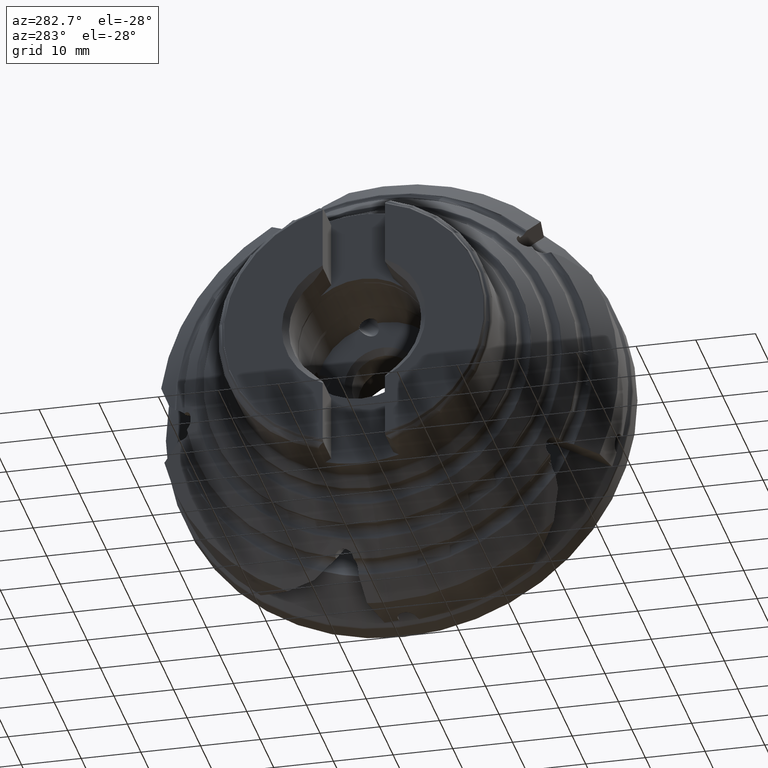
[diagram: clean part render]
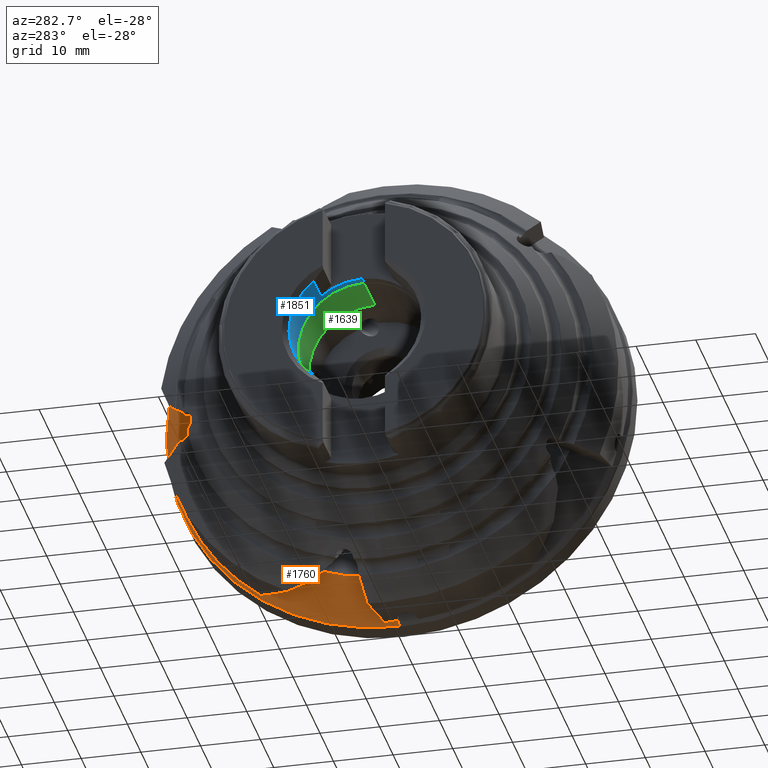
[diagram: same view with three faces highlighted in distinct colors, each labeled with its STEP entity id]
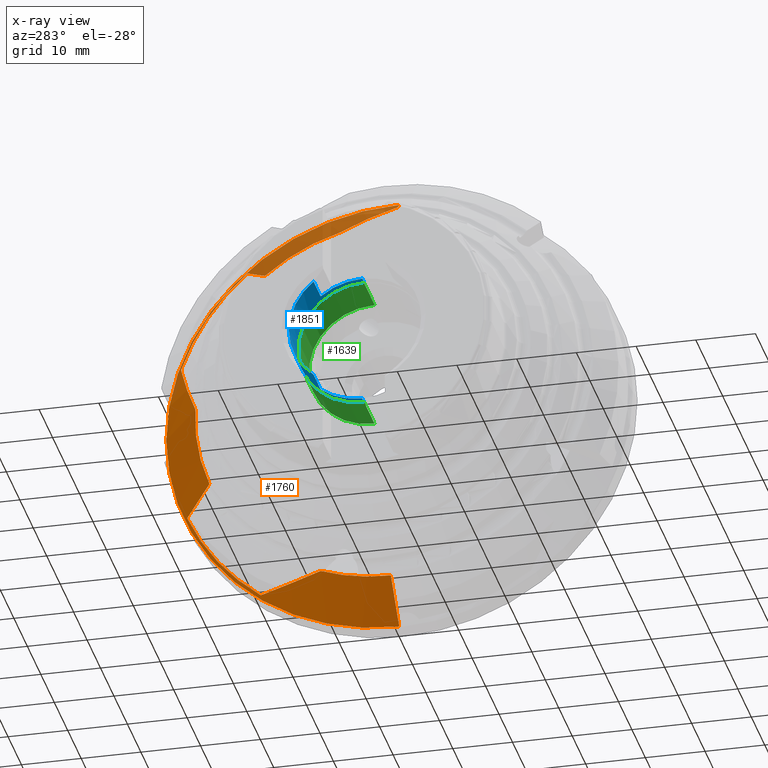
[diagram: x-ray of the same camera — body ghosted, the three highlighted faces saturated]
A machine part, auxiliary view with three faces highlighted in distinct colors.
The next image is the same camera in x-ray (body ghosted, the three faces saturated) — at least one of them is partly hidden behind the body in this view.
Their STEP definitions:

[orange] entity #1760 — the highlighted conical surface has half-angle 45 deg.
#352 = ORIENTED_EDGE ( 'NONE', *, *, #8707, .F. ) ;
#354 = ORIENTED_EDGE ( 'NONE', *, *, #8752, .T. ) ;
#358 = ORIENTED_EDGE ( 'NONE', *, *, #8715, .T. ) ;
#360 = ORIENTED_EDGE ( 'NONE', *, *, #8522, .F. ) ;
#397 = ORIENTED_EDGE ( 'NONE', *, *, #8539, .F. ) ;
#398 = ORIENTED_EDGE ( 'NONE', *, *, #8744, .F. ) ;
#400 = ORIENTED_EDGE ( 'NONE', *, *, #8523, .F. ) ;
#531 = ORIENTED_EDGE ( 'NONE', *, *, #8491, .F. ) ;
#537 = ORIENTED_EDGE ( 'NONE', *, *, #8507, .T. ) ;
#552 = ORIENTED_EDGE ( 'NONE', *, *, #8775, .T. ) ;
#557 = ORIENTED_EDGE ( 'NONE', *, *, #8500, .F. ) ;
#793 = FACE_OUTER_BOUND ( 'NONE', #9866, .T. ) ;
#846 = CONICAL_SURFACE ( 'NONE', #10441, 39.15000000000000600, 0.7853981633974506100 ) ;
#940 = B_SPLINE_CURVE_WITH_KNOTS ( 'NONE', 3,
 ( #4435, #4460, #4464, #4465, #4466, #4467 ),
 .UNSPECIFIED., .F., .F.,
 ( 4, 2, 4 ),
 ( 4.998149177076935600E-007, 0.006338097076132026900, 0.01267569433734634500 ),
 .UNSPECIFIED. ) ;
#965 = B_SPLINE_CURVE_WITH_KNOTS ( 'NONE', 3,
 ( #6657, #6658, #4433, #4434 ),
 .UNSPECIFIED., .F., .F.,
 ( 4, 4 ),
 ( 2.839225696594633400E-007, 0.008107362688691475300 ),
 .UNSPECIFIED. ) ;
#966 = B_SPLINE_CURVE_WITH_KNOTS ( 'NONE', 3,
 ( #6511, #6496, #6513, #6514 ),
 .UNSPECIFIED., .F., .F.,
 ( 4, 4 ),
 ( 2.839225716183299500E-007, 0.008107362690191447300 ),
 .UNSPECIFIED. ) ;
#971 = B_SPLINE_CURVE_WITH_KNOTS ( 'NONE', 3,
 ( #6539, #6549, #6555, #6556, #6557, #6558 ),
 .UNSPECIFIED., .F., .F.,
 ( 4, 2, 4 ),
 ( 4.998149175270989400E-007, 0.006338097076131845600, 0.01267569433734616400 ),
 .UNSPECIFIED. ) ;
#1018 = B_SPLINE_CURVE_WITH_KNOTS ( 'NONE', 3,
 ( #7475, #7493, #7496, #7497, #7498, #7499 ),
 .UNSPECIFIED., .F., .F.,
 ( 4, 2, 4 ),
 ( 5.001190386679058200E-007, 0.005956320919708663600, 0.01191214172037865900 ),
 .UNSPECIFIED. ) ;
#1201 = ORIENTED_EDGE ( 'NONE', *, *, #8531, .T. ) ;
#1209 = ORIENTED_EDGE ( 'NONE', *, *, #8729, .F. ) ;
#1760 = ADVANCED_FACE ( 'NONE', ( #793 ), #846, .T. ) ;
#3434 = VERTEX_POINT ( 'NONE', #8084 ) ;
#3435 = VERTEX_POINT ( 'NONE', #8096 ) ;
#3481 = VERTEX_POINT ( 'NONE', #8120 ) ;
#3515 = VERTEX_POINT ( 'NONE', #8134 ) ;
#3550 = VERTEX_POINT ( 'NONE', #8148 ) ;
#3576 = VERTEX_POINT ( 'NONE', #8155 ) ;
#3590 = VERTEX_POINT ( 'NONE', #8158 ) ;
#3607 = VERTEX_POINT ( 'NONE', #8166 ) ;
#3630 = VERTEX_POINT ( 'NONE', #8170 ) ;
#3632 = VERTEX_POINT ( 'NONE', #8168 ) ;
#3699 = VERTEX_POINT ( 'NONE', #8212 ) ;
#3720 = VERTEX_POINT ( 'NONE', #8223 ) ;
#3721 = VERTEX_POINT ( 'NONE', #8221 ) ;
#4433 = CARTESIAN_POINT ( 'NONE',  ( -12.25556226208592600, 23.91625361857510900, 27.69848549084971300 ) ) ;
#4434 = CARTESIAN_POINT ( 'NONE',  ( -10.35000000000003000, 25.32094985395250900, 29.00171544053252100 ) ) ;
#4435 = CARTESIAN_POINT ( 'NONE',  ( -16.06396103067893900, 11.76240087903417700, -30.60343570350779200 ) ) ;
#4460 = CARTESIAN_POINT ( 'NONE',  ( -15.21863026519159100, 13.70087912173086800, -30.76400229089890100 ) ) ;
#4464 = CARTESIAN_POINT ( 'NONE',  ( -14.31169853684057700, 15.60881003817991100, -30.85279042755896800 ) ) ;
#4465 = CARTESIAN_POINT ( 'NONE',  ( -12.39988203309779100, 19.37609789518855800, -30.91623020634851200 ) ) ;
#4466 = CARTESIAN_POINT ( 'NONE',  ( -11.39489777325102300, 21.23540550236176500, -30.89076592756181200 ) ) ;
#4467 = CARTESIAN_POINT ( 'NONE',  ( -10.35000000000003700, 23.07492038132151200, -30.81879376931668100 ) ) ;
#4512 = CARTESIAN_POINT ( 'NONE',  ( -10.35000000000003200, 0.0000000000000000000, 0.0000000000000000000 ) ) ;
#4513 = DIRECTION ( 'NONE',  ( -1.000000000000000000, -0.0000000000000000000, -0.0000000000000000000 ) ) ;
#4514 = DIRECTION ( 'NONE',  ( 0.0000000000000000000, 1.776356839400250500E-015, -1.000000000000000000 ) ) ;
#4871 = CARTESIAN_POINT ( 'NONE',  ( -10.35000000000003200, 0.0000000000000000000, 0.0000000000000000000 ) ) ;
#4872 = DIRECTION ( 'NONE',  ( -1.000000000000000000, -0.0000000000000000000, -0.0000000000000000000 ) ) ;
#4873 = DIRECTION ( 'NONE',  ( 0.0000000000000000000, -3.552713678800500900E-015, -1.000000000000000000 ) ) ;
#4896 = CARTESIAN_POINT ( 'NONE',  ( -9.846446609406756400, 0.0000000000000000000, 0.0000000000000000000 ) ) ;
#4897 = DIRECTION ( 'NONE',  ( -1.000000000000000000, -0.0000000000000000000, -0.0000000000000000000 ) ) ;
#4898 = DIRECTION ( 'NONE',  ( 0.0000000000000000000, 0.0000000000000000000, 1.000000000000000000 ) ) ;
#4926 = CARTESIAN_POINT ( 'NONE',  ( -16.06396103067893900, 0.0000000000000000000, 0.0000000000000000000 ) ) ;
#4927 = DIRECTION ( 'NONE',  ( -1.000000000000000000, -0.0000000000000000000, -0.0000000000000000000 ) ) ;
#4928 = DIRECTION ( 'NONE',  ( 0.0000000000000000000, 0.0000000000000000000, 1.000000000000000000 ) ) ;
#6435 = CARTESIAN_POINT ( 'NONE',  ( -9.700000000000029500, 0.0000000000000000000, -39.15000000000000600 ) ) ;
#6465 = DIRECTION ( 'NONE',  ( 0.7071067811865459100, 0.0000000000000000000, -0.7071067811865491300 ) ) ;
#6496 = CARTESIAN_POINT ( 'NONE',  ( -14.16037219592313100, 32.05903498613271600, -13.25307509183465300 ) ) ;
#6511 = CARTESIAN_POINT ( 'NONE',  ( -16.06396103067893900, 30.38342397019751200, -12.31957382156812900 ) ) ;
#6513 = CARTESIAN_POINT ( 'NONE',  ( -12.25556226208592700, 33.73335392750039600, -14.18640611419302500 ) ) ;
#6514 = CARTESIAN_POINT ( 'NONE',  ( -10.35000000000003000, 35.40687427204335300, -15.11963142023357800 ) ) ;
#6539 = CARTESIAN_POINT ( 'NONE',  ( -16.06396103067893900, 32.74037871311323800, 1.729726284635992700 ) ) ;
#6549 = CARTESIAN_POINT ( 'NONE',  ( -15.21863026519159200, 33.49210933257020900, 3.523710844816406100 ) ) ;
#6555 = CARTESIAN_POINT ( 'NONE',  ( -14.31169853684057700, 34.16613494578660900, 5.310823932419397800 ) ) ;
#6556 = CARTESIAN_POINT ( 'NONE',  ( -12.39988203309779800, 35.39062573131482000, 8.874123627821706600 ) ) ;
#6557 = CARTESIAN_POINT ( 'NONE',  ( -11.39489777325102400, 35.94096541142914700, 10.65029913831552300 ) ) ;
#6558 = CARTESIAN_POINT ( 'NONE',  ( -10.35000000000003700, 36.44095718034243700, 12.42202237079166100 ) ) ;
#6641 = AXIS2_PLACEMENT_3D ( 'NONE', #6659, #6660, #6662 ) ;
#6652 = AXIS2_PLACEMENT_3D ( 'NONE', #4512, #4513, #4514 ) ;
#6657 = CARTESIAN_POINT ( 'NONE',  ( -16.06396103067893900, 21.10560531507165600, 25.08939567989349200 ) ) ;
#6658 = CARTESIAN_POINT ( 'NONE',  ( -14.16037219592313100, 22.51121006101428500, 26.39452869859165700 ) ) ;
#6659 = CARTESIAN_POINT ( 'NONE',  ( -16.06396103067893900, 0.0000000000000000000, 0.0000000000000000000 ) ) ;
#6660 = DIRECTION ( 'NONE',  ( -1.000000000000000000, -0.0000000000000000000, -0.0000000000000000000 ) ) ;
#6662 = DIRECTION ( 'NONE',  ( 0.0000000000000000000, 0.0000000000000000000, 1.000000000000000000 ) ) ;
#6678 = AXIS2_PLACEMENT_3D ( 'NONE', #4871, #4872, #4873 ) ;
#6681 = AXIS2_PLACEMENT_3D ( 'NONE', #4896, #4897, #4898 ) ;
#6688 = AXIS2_PLACEMENT_3D ( 'NONE', #4926, #4927, #4928 ) ;
#6692 = AXIS2_PLACEMENT_3D ( 'NONE', #7429, #7430, #7431 ) ;
#6766 = CARTESIAN_POINT ( 'NONE',  ( -9.700000000000029500, 0.0000000000000000000, 0.0000000000000000000 ) ) ;
#6767 = DIRECTION ( 'NONE',  ( 1.000000000000000000, 0.0000000000000000000, 0.0000000000000000000 ) ) ;
#6777 = DIRECTION ( 'NONE',  ( 0.0000000000000000000, 0.0000000000000000000, -1.000000000000000000 ) ) ;
#7429 = CARTESIAN_POINT ( 'NONE',  ( -16.06396103067893900, 0.0000000000000000000, 0.0000000000000000000 ) ) ;
#7430 = DIRECTION ( 'NONE',  ( -1.000000000000000000, -0.0000000000000000000, -0.0000000000000000000 ) ) ;
#7431 = DIRECTION ( 'NONE',  ( 0.0000000000000000000, 0.0000000000000000000, 1.000000000000000000 ) ) ;
#7439 = CARTESIAN_POINT ( 'NONE',  ( -9.700000000000029500, 4.794492218661888300E-015, 39.15000000000000600 ) ) ;
#7440 = DIRECTION ( 'NONE',  ( 0.7071067811865459100, 8.659560562354952600E-017, 0.7071067811865491300 ) ) ;
#7475 = CARTESIAN_POINT ( 'NONE',  ( -16.06396103067893900, 8.472265970213612700, 31.67246533864706500 ) ) ;
#7493 = CARTESIAN_POINT ( 'NONE',  ( -15.27003599352886500, 7.088011666614220600, 32.86458686861084300 ) ) ;
#7496 = CARTESIAN_POINT ( 'NONE',  ( -14.42148344595441100, 5.687893586301966800, 33.98997390808610700 ) ) ;
#7497 = CARTESIAN_POINT ( 'NONE',  ( -12.63620034026142100, 2.862050615859678800, 36.13302726975995700 ) ) ;
#7498 = CARTESIAN_POINT ( 'NONE',  ( -11.69939624412964800, 1.436304370361025000, 37.15060375587037800 ) ) ;
#7499 = CARTESIAN_POINT ( 'NONE',  ( -10.72623484882376000, 5.367514032291686300E-015, 38.12376515117627200 ) ) ;
#8084 = CARTESIAN_POINT ( 'NONE',  ( -10.72623484882376000, 5.367514032291686300E-015, 38.12376515117627200 ) ) ;
#8096 = CARTESIAN_POINT ( 'NONE',  ( -9.846446609406756400, 0.0000000000000000000, -39.00355339059327500 ) ) ;
#8120 = CARTESIAN_POINT ( 'NONE',  ( -16.06396103067893900, 0.0000000000000000000, -32.78603896932106200 ) ) ;
#8134 = CARTESIAN_POINT ( 'NONE',  ( -10.35000000000003000, 35.40687427204335300, -15.11963142023357800 ) ) ;
#8148 = CARTESIAN_POINT ( 'NONE',  ( -16.06396103067893900, 11.76240087903417700, -30.60343570350779200 ) ) ;
#8155 = CARTESIAN_POINT ( 'NONE',  ( -16.06396103067893900, 21.10560531507165600, 25.08939567989349200 ) ) ;
#8158 = CARTESIAN_POINT ( 'NONE',  ( -16.06396103067893900, 30.38342397019751200, -12.31957382156812900 ) ) ;
#8166 = CARTESIAN_POINT ( 'NONE',  ( -10.35000000000003700, 23.07492038132151200, -30.81879376931668100 ) ) ;
#8168 = CARTESIAN_POINT ( 'NONE',  ( -10.35000000000003700, 36.44095718034243700, 12.42202237079166100 ) ) ;
#8170 = CARTESIAN_POINT ( 'NONE',  ( -16.06396103067893900, 32.74037871311323800, 1.729726284635992700 ) ) ;
#8212 = CARTESIAN_POINT ( 'NONE',  ( -16.06396103067893900, 8.472265970213612700, 31.67246533864706500 ) ) ;
#8221 = CARTESIAN_POINT ( 'NONE',  ( -10.35000000000003000, 25.32094985395250900, 29.00171544053252100 ) ) ;
#8223 = CARTESIAN_POINT ( 'NONE',  ( -9.846446609406756400, 4.776557681516295700E-015, 39.00355339059327500 ) ) ;
#8491 = EDGE_CURVE ( 'NONE', #3481, #3435, #8965, .T. ) ;
#8500 = EDGE_CURVE ( 'NONE', #3590, #3515, #966, .T. ) ;
#8507 = EDGE_CURVE ( 'NONE', #3630, #3632, #971, .T. ) ;
#8522 = EDGE_CURVE ( 'NONE', #3550, #3481, #8988, .T. ) ;
#8523 = EDGE_CURVE ( 'NONE', #3576, #3721, #965, .T. ) ;
#8531 = EDGE_CURVE ( 'NONE', #3550, #3607, #940, .T. ) ;
#8539 = EDGE_CURVE ( 'NONE', #3721, #3632, #9004, .T. ) ;
#8707 = EDGE_CURVE ( 'NONE', #3515, #3607, #9075, .T. ) ;
#8715 = EDGE_CURVE ( 'NONE', #3720, #3435, #9059, .T. ) ;
#8729 = EDGE_CURVE ( 'NONE', #3630, #3590, #9088, .T. ) ;
#8744 = EDGE_CURVE ( 'NONE', #3699, #3576, #9098, .T. ) ;
#8752 = EDGE_CURVE ( 'NONE', #3434, #3720, #9113, .T. ) ;
#8775 = EDGE_CURVE ( 'NONE', #3699, #3434, #1018, .T. ) ;
#8965 = LINE ( 'NONE', #6435, #8968 ) ;
#8968 = VECTOR ( 'NONE', #6465, 1000.000000000000000 ) ;
#8988 = CIRCLE ( 'NONE', #6641, 32.78603896932106200 ) ;
#9004 = CIRCLE ( 'NONE', #6652, 38.50000000000000000 ) ;
#9059 = CIRCLE ( 'NONE', #6681, 39.00355339059327500 ) ;
#9075 = CIRCLE ( 'NONE', #6678, 38.50000000000000000 ) ;
#9088 = CIRCLE ( 'NONE', #6688, 32.78603896932106200 ) ;
#9098 = CIRCLE ( 'NONE', #6692, 32.78603896932106200 ) ;
#9113 = LINE ( 'NONE', #7439, #9116 ) ;
#9116 = VECTOR ( 'NONE', #7440, 1000.000000000000000 ) ;
#9866 = EDGE_LOOP ( 'NONE', ( #552, #354, #358, #531, #360, #1201, #352, #557, #1209, #537, #397, #400, #398 ) ) ;
#10441 = AXIS2_PLACEMENT_3D ( 'NONE', #6766, #6767, #6777 ) ;

[blue] entity #1851 — the highlighted cylindrical surface (partial cylindrical patch) has radius 11.075 mm, axis along (1, -0, -0).
#314 = VERTEX_POINT ( 'NONE', #2450 ) ;
#321 = VERTEX_POINT ( 'NONE', #5863 ) ;
#323 = VERTEX_POINT ( 'NONE', #5867 ) ;
#326 = VERTEX_POINT ( 'NONE', #5885 ) ;
#1044 = CIRCLE ( 'NONE', #6452, 11.07499999999999400 ) ;
#1047 = CIRCLE ( 'NONE', #6463, 11.07499999999999400 ) ;
#1059 = VECTOR ( 'NONE', #7397, 1000.000000000000000 ) ;
#1092 = LINE ( 'NONE', #7389, #1106 ) ;
#1101 = LINE ( 'NONE', #7396, #1059 ) ;
#1103 = CIRCLE ( 'NONE', #6450, 11.07499999999999400 ) ;
#1106 = VECTOR ( 'NONE', #7398, 1000.000000000000000 ) ;
#1117 = CIRCLE ( 'NONE', #6485, 11.07499999999999400 ) ;
#1350 = EDGE_LOOP ( 'NONE', ( #9853, #9890, #9845, #9846, #9844, #9843, #9849, #9842 ) ) ;
#1851 = ADVANCED_FACE ( 'NONE', ( #5331 ), #5373, .F. ) ;
#2450 = CARTESIAN_POINT ( 'NONE',  ( -37.35000000000000100, 6.952914283410240000, -8.620476087058635900 ) ) ;
#2726 = EDGE_CURVE ( 'NONE', #321, #323, #1103, .T. ) ;
#2733 = EDGE_CURVE ( 'NONE', #321, #314, #1101, .T. ) ;
#2734 = EDGE_CURVE ( 'NONE', #326, #323, #1092, .T. ) ;
#2738 = EDGE_CURVE ( 'NONE', #3254, #326, #1044, .T. ) ;
#2755 = EDGE_CURVE ( 'NONE', #314, #3321, #1047, .T. ) ;
#3118 = DIRECTION ( 'NONE',  ( 1.000000000000000000, -0.0000000000000000000, -0.0000000000000000000 ) ) ;
#3119 = DIRECTION ( 'NONE',  ( 0.0000000000000000000, 0.0000000000000000000, -1.000000000000000000 ) ) ;
#3122 = CARTESIAN_POINT ( 'NONE',  ( 0.0000000000000000000, 0.0000000000000000000, 0.0000000000000000000 ) ) ;
#3254 = VERTEX_POINT ( 'NONE', #7999 ) ;
#3289 = VERTEX_POINT ( 'NONE', #8015 ) ;
#3321 = VERTEX_POINT ( 'NONE', #8042 ) ;
#3682 = VERTEX_POINT ( 'NONE', #8200 ) ;
#4631 = CARTESIAN_POINT ( 'NONE',  ( 0.0000000000000000000, 1.356296330055693000E-015, 11.07499999999999400 ) ) ;
#4632 = DIRECTION ( 'NONE',  ( 1.000000000000000000, -0.0000000000000000000, -0.0000000000000000000 ) ) ;
#4973 = AXIS2_PLACEMENT_3D ( 'NONE', #3122, #3118, #3119 ) ;
#5020 = EDGE_CURVE ( 'NONE', #3682, #3289, #1117, .T. ) ;
#5331 = FACE_OUTER_BOUND ( 'NONE', #1350, .T. ) ;
#5373 = CYLINDRICAL_SURFACE ( 'NONE', #4973, 11.07499999999999400 ) ;
#5863 = CARTESIAN_POINT ( 'NONE',  ( -42.64999999999999900, 6.952914283410233800, -8.620476087058639400 ) ) ;
#5867 = CARTESIAN_POINT ( 'NONE',  ( -42.64999999999999900, 6.952914283410233800, 8.620476087058639400 ) ) ;
#5885 = CARTESIAN_POINT ( 'NONE',  ( -37.35000000000000100, 6.952914283410240000, 8.620476087058635900 ) ) ;
#6450 = AXIS2_PLACEMENT_3D ( 'NONE', #7372, #7373, #7374 ) ;
#6452 = AXIS2_PLACEMENT_3D ( 'NONE', #7405, #7406, #7913 ) ;
#6463 = AXIS2_PLACEMENT_3D ( 'NONE', #7974, #7975, #7976 ) ;
#6485 = AXIS2_PLACEMENT_3D ( 'NONE', #8386, #8387, #8388 ) ;
#6562 = DIRECTION ( 'NONE',  ( 1.000000000000000000, -0.0000000000000000000, -0.0000000000000000000 ) ) ;
#6564 = CARTESIAN_POINT ( 'NONE',  ( 0.0000000000000000000, 0.0000000000000000000, -11.07499999999999400 ) ) ;
#7372 = CARTESIAN_POINT ( 'NONE',  ( -42.64999999999999900, 0.0000000000000000000, 0.0000000000000000000 ) ) ;
#7373 = DIRECTION ( 'NONE',  ( 1.000000000000000000, -0.0000000000000000000, -0.0000000000000000000 ) ) ;
#7374 = DIRECTION ( 'NONE',  ( 0.0000000000000000000, 0.0000000000000000000, -1.000000000000000000 ) ) ;
#7389 = CARTESIAN_POINT ( 'NONE',  ( 0.0000000000000000000, 6.952914283410239100, 8.620476087058637700 ) ) ;
#7396 = CARTESIAN_POINT ( 'NONE',  ( 0.0000000000000000000, 6.952914283410239100, -8.620476087058637700 ) ) ;
#7397 = DIRECTION ( 'NONE',  ( 1.000000000000000000, -0.0000000000000000000, -0.0000000000000000000 ) ) ;
#7398 = DIRECTION ( 'NONE',  ( -1.000000000000000000, 0.0000000000000000000, 0.0000000000000000000 ) ) ;
#7405 = CARTESIAN_POINT ( 'NONE',  ( -37.35000000000000100, 0.0000000000000000000, 0.0000000000000000000 ) ) ;
#7406 = DIRECTION ( 'NONE',  ( -1.000000000000000000, -0.0000000000000000000, -0.0000000000000000000 ) ) ;
#7913 = DIRECTION ( 'NONE',  ( 0.0000000000000000000, 0.0000000000000000000, -1.000000000000000000 ) ) ;
#7974 = CARTESIAN_POINT ( 'NONE',  ( -37.35000000000000100, 0.0000000000000000000, 0.0000000000000000000 ) ) ;
#7975 = DIRECTION ( 'NONE',  ( -1.000000000000000000, -0.0000000000000000000, -0.0000000000000000000 ) ) ;
#7976 = DIRECTION ( 'NONE',  ( 0.0000000000000000000, 2.664535259100376100E-015, -1.000000000000000000 ) ) ;
#7999 = CARTESIAN_POINT ( 'NONE',  ( -37.35000000000000100, 1.356296330055693000E-015, 11.07499999999999400 ) ) ;
#8015 = CARTESIAN_POINT ( 'NONE',  ( -36.10000000000000100, 1.356296330055693000E-015, 11.07499999999999400 ) ) ;
#8042 = CARTESIAN_POINT ( 'NONE',  ( -37.35000000000000100, 0.0000000000000000000, -11.07499999999999400 ) ) ;
#8200 = CARTESIAN_POINT ( 'NONE',  ( -36.10000000000000100, 0.0000000000000000000, -11.07499999999999400 ) ) ;
#8386 = CARTESIAN_POINT ( 'NONE',  ( -36.10000000000000100, 0.0000000000000000000, 0.0000000000000000000 ) ) ;
#8387 = DIRECTION ( 'NONE',  ( 1.000000000000000000, -0.0000000000000000000, -0.0000000000000000000 ) ) ;
#8388 = DIRECTION ( 'NONE',  ( 0.0000000000000000000, 0.0000000000000000000, -1.000000000000000000 ) ) ;
#8510 = EDGE_CURVE ( 'NONE', #3321, #3682, #8975, .T. ) ;
#8572 = EDGE_CURVE ( 'NONE', #3254, #3289, #9046, .T. ) ;
#8975 = LINE ( 'NONE', #6564, #8985 ) ;
#8985 = VECTOR ( 'NONE', #6562, 1000.000000000000000 ) ;
#9046 = LINE ( 'NONE', #4631, #9048 ) ;
#9048 = VECTOR ( 'NONE', #4632, 1000.000000000000000 ) ;
#9842 = ORIENTED_EDGE ( 'NONE', *, *, #5020, .T. ) ;
#9843 = ORIENTED_EDGE ( 'NONE', *, *, #2755, .T. ) ;
#9844 = ORIENTED_EDGE ( 'NONE', *, *, #2733, .T. ) ;
#9845 = ORIENTED_EDGE ( 'NONE', *, *, #2734, .T. ) ;
#9846 = ORIENTED_EDGE ( 'NONE', *, *, #2726, .F. ) ;
#9849 = ORIENTED_EDGE ( 'NONE', *, *, #8510, .T. ) ;
#9853 = ORIENTED_EDGE ( 'NONE', *, *, #8572, .F. ) ;
#9890 = ORIENTED_EDGE ( 'NONE', *, *, #2738, .T. ) ;

[green] entity #1639 — the highlighted cylindrical surface (partial cylindrical patch) has radius 11 mm, axis along (-1, -0, -0).
#46 = FACE_OUTER_BOUND ( 'NONE', #1259, .T. ) ;
#196 = CYLINDRICAL_SURFACE ( 'NONE', #10339, 11.00000000000000000 ) ;
#1259 = EDGE_LOOP ( 'NONE', ( #9910, #9909, #9912, #9911 ) ) ;
#1639 = ADVANCED_FACE ( 'NONE', ( #46 ), #196, .F. ) ;
#3621 = VERTEX_POINT ( 'NONE', #8165 ) ;
#3655 = VERTEX_POINT ( 'NONE', #8171 ) ;
#3656 = VERTEX_POINT ( 'NONE', #8178 ) ;
#3741 = VERTEX_POINT ( 'NONE', #8230 ) ;
#3927 = DIRECTION ( 'NONE',  ( 0.0000000000000000000, 0.0000000000000000000, 1.000000000000000000 ) ) ;
#3935 = CARTESIAN_POINT ( 'NONE',  ( -23.65000000000000200, 0.0000000000000000000, 0.0000000000000000000 ) ) ;
#3936 = DIRECTION ( 'NONE',  ( -1.000000000000000000, -0.0000000000000000000, -0.0000000000000000000 ) ) ;
#4508 = CARTESIAN_POINT ( 'NONE',  ( -23.65000000000000200, 0.0000000000000000000, 11.00000000000000000 ) ) ;
#4510 = DIRECTION ( 'NONE',  ( -1.000000000000000000, -0.0000000000000000000, -0.0000000000000000000 ) ) ;
#5172 = EDGE_CURVE ( 'NONE', #3655, #3656, #5825, .T. ) ;
#5211 = EDGE_CURVE ( 'NONE', #3741, #3621, #8916, .T. ) ;
#5825 = CIRCLE ( 'NONE', #6527, 11.00000000000000000 ) ;
#6143 = CARTESIAN_POINT ( 'NONE',  ( -35.90000000000000600, 0.0000000000000000000, 0.0000000000000000000 ) ) ;
#6144 = DIRECTION ( 'NONE',  ( 1.000000000000000000, -0.0000000000000000000, -0.0000000000000000000 ) ) ;
#6145 = DIRECTION ( 'NONE',  ( 0.0000000000000000000, 0.0000000000000000000, 1.000000000000000000 ) ) ;
#6333 = DIRECTION ( 'NONE',  ( -1.000000000000000000, -0.0000000000000000000, -0.0000000000000000000 ) ) ;
#6389 = CARTESIAN_POINT ( 'NONE',  ( -23.65000000000000200, 1.347111479062088400E-015, -11.00000000000000000 ) ) ;
#6527 = AXIS2_PLACEMENT_3D ( 'NONE', #9656, #9657, #9658 ) ;
#6547 = AXIS2_PLACEMENT_3D ( 'NONE', #6143, #6144, #6145 ) ;
#8165 = CARTESIAN_POINT ( 'NONE',  ( -35.90000000000000600, 0.0000000000000000000, 11.00000000000000000 ) ) ;
#8171 = CARTESIAN_POINT ( 'NONE',  ( -28.11634727082117600, 1.356296330055693200E-015, 11.00000000000000000 ) ) ;
#8178 = CARTESIAN_POINT ( 'NONE',  ( -28.11634727082117600, 0.0000000000000000000, -11.00000000000000000 ) ) ;
#8230 = CARTESIAN_POINT ( 'NONE',  ( -35.90000000000000600, 1.351703904558890800E-015, -11.00000000000000000 ) ) ;
#8484 = EDGE_CURVE ( 'NONE', #3656, #3741, #8948, .T. ) ;
#8538 = EDGE_CURVE ( 'NONE', #3655, #3621, #9007, .T. ) ;
#8916 = CIRCLE ( 'NONE', #6547, 11.00000000000000000 ) ;
#8948 = LINE ( 'NONE', #6389, #8959 ) ;
#8959 = VECTOR ( 'NONE', #6333, 1000.000000000000000 ) ;
#9007 = LINE ( 'NONE', #4508, #9010 ) ;
#9010 = VECTOR ( 'NONE', #4510, 1000.000000000000000 ) ;
#9656 = CARTESIAN_POINT ( 'NONE',  ( -28.11634727082117600, 0.0000000000000000000, 0.0000000000000000000 ) ) ;
#9657 = DIRECTION ( 'NONE',  ( -1.000000000000000000, 0.0000000000000000000, 0.0000000000000000000 ) ) ;
#9658 = DIRECTION ( 'NONE',  ( 0.0000000000000000000, 0.0000000000000000000, -1.000000000000000000 ) ) ;
#9909 = ORIENTED_EDGE ( 'NONE', *, *, #5172, .F. ) ;
#9910 = ORIENTED_EDGE ( 'NONE', *, *, #8484, .F. ) ;
#9911 = ORIENTED_EDGE ( 'NONE', *, *, #5211, .F. ) ;
#9912 = ORIENTED_EDGE ( 'NONE', *, *, #8538, .T. ) ;
#10339 = AXIS2_PLACEMENT_3D ( 'NONE', #3935, #3936, #3927 ) ;